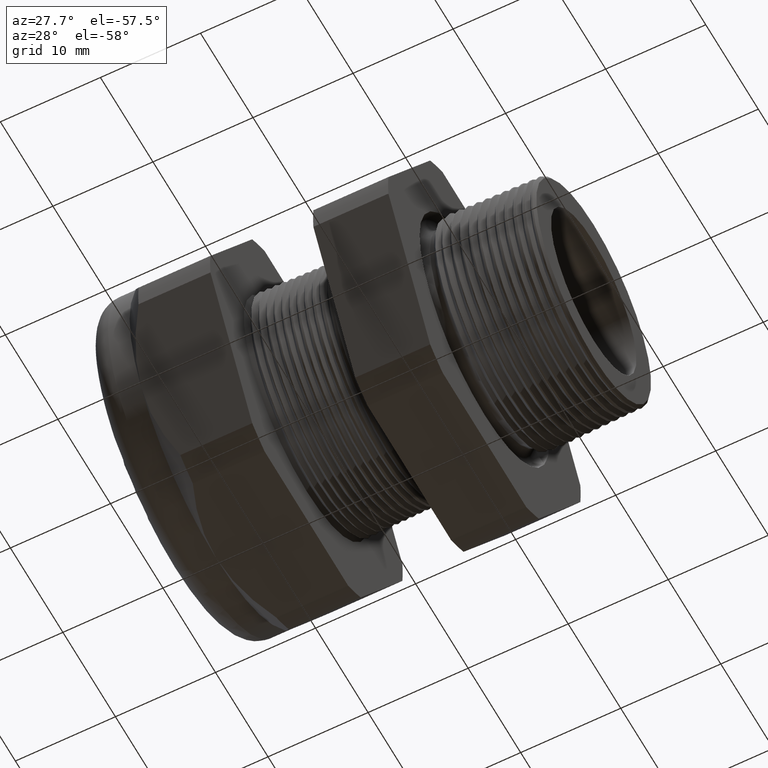
[diagram: clean part render]
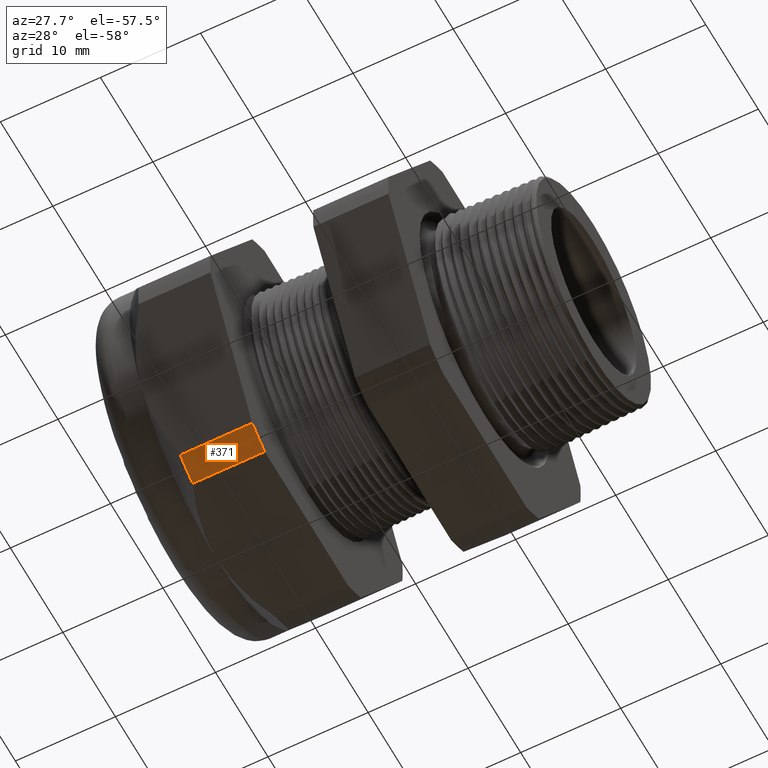
[diagram: same view with one face highlighted and labeled with its STEP entity id]
A machine part, auxiliary view. The second image highlights one B-rep face of the part: STEP entity #371.
In plain terms, the highlighted cylindrical surface (partial cylindrical patch) has radius 18.3261 mm, axis along (-1, 0, 0).
Its self-contained STEP definition (entity closure, byte-faithful):
#345 = EDGE_CURVE ( 'NONE', #374, #346, #1514, .T. ) ;
#346 = VERTEX_POINT ( 'NONE', #1510 ) ;
#347 = ORIENTED_EDGE ( 'NONE', *, *, #348, .T. ) ;
#348 = EDGE_CURVE ( 'NONE', #346, #363, #1508, .T. ) ;
#349 = ORIENTED_EDGE ( 'NONE', *, *, #361, .F. ) ;
#350 = ORIENTED_EDGE ( 'NONE', *, *, #351, .F. ) ;
#351 = EDGE_CURVE ( 'NONE', #374, #362, #1503, .T. ) ;
#361 = EDGE_CURVE ( 'NONE', #362, #363, #1550, .T. ) ;
#362 = VERTEX_POINT ( 'NONE', #1546 ) ;
#363 = VERTEX_POINT ( 'NONE', #1545 ) ;
#371 = ADVANCED_FACE ( 'NONE', ( #1529 ), #1580, .T. ) ;
#372 = EDGE_LOOP ( 'NONE', ( #373, #347, #349, #350 ) ) ;
#373 = ORIENTED_EDGE ( 'NONE', *, *, #345, .T. ) ;
#374 = VERTEX_POINT ( 'NONE', #1574 ) ;
#1499 = DIRECTION ( 'NONE',  ( 0.0000000000000000000, 0.0000000000000000000, -1.000000000000000000 ) ) ;
#1500 = DIRECTION ( 'NONE',  ( 1.000000000000000000, 0.0000000000000000000, 0.0000000000000000000 ) ) ;
#1501 = CARTESIAN_POINT ( 'NONE',  ( -1.010314960629921100, 0.0000000000000000000, 0.0000000000000000000 ) ) ;
#1502 = AXIS2_PLACEMENT_3D ( 'NONE', #1501, #1500, #1499 ) ;
#1503 = CIRCLE ( 'NONE', #1502, 0.7215000000000000300 ) ;
#1504 = DIRECTION ( 'NONE',  ( 0.0000000000000000000, 0.0000000000000000000, -1.000000000000000000 ) ) ;
#1505 = DIRECTION ( 'NONE',  ( 1.000000000000000000, 0.0000000000000000000, 0.0000000000000000000 ) ) ;
#1506 = CARTESIAN_POINT ( 'NONE',  ( -1.293145669291338600, 0.0000000000000000000, 0.0000000000000000000 ) ) ;
#1507 = AXIS2_PLACEMENT_3D ( 'NONE', #1506, #1505, #1504 ) ;
#1508 = CIRCLE ( 'NONE', #1507, 0.7215000000000000300 ) ;
#1510 = CARTESIAN_POINT ( 'NONE',  ( -1.293145669291338600, -0.4063420493440881300, -0.5961949252843793400 ) ) ;
#1511 = DIRECTION ( 'NONE',  ( -1.000000000000000000, 0.0000000000000000000, 0.0000000000000000000 ) ) ;
#1512 = VECTOR ( 'NONE', #1511, 39.37007874015748100 ) ;
#1513 = CARTESIAN_POINT ( 'NONE',  ( 0.1200000000000000900, -0.4063420493440881300, -0.5961949252843793400 ) ) ;
#1514 = LINE ( 'NONE', #1513, #1512 ) ;
#1529 = FACE_OUTER_BOUND ( 'NONE', #372, .T. ) ;
#1545 = CARTESIAN_POINT ( 'NONE',  ( -1.293145669291338800, -0.3131489262315934600, -0.6500000000000001300 ) ) ;
#1546 = CARTESIAN_POINT ( 'NONE',  ( -1.010314960629921100, -0.3131489262315934100, -0.6500000000000001300 ) ) ;
#1547 = DIRECTION ( 'NONE',  ( -1.000000000000000000, 0.0000000000000000000, 0.0000000000000000000 ) ) ;
#1548 = VECTOR ( 'NONE', #1547, 39.37007874015748100 ) ;
#1549 = CARTESIAN_POINT ( 'NONE',  ( 0.1200000000000000900, -0.3131489262315934100, -0.6500000000000001300 ) ) ;
#1550 = LINE ( 'NONE', #1549, #1548 ) ;
#1574 = CARTESIAN_POINT ( 'NONE',  ( -1.010314960629921100, -0.4063420493440881300, -0.5961949252843793400 ) ) ;
#1575 = DIRECTION ( 'NONE',  ( 0.0000000000000000000, 0.0000000000000000000, 1.000000000000000000 ) ) ;
#1576 = DIRECTION ( 'NONE',  ( -1.000000000000000000, 0.0000000000000000000, 0.0000000000000000000 ) ) ;
#1577 = CARTESIAN_POINT ( 'NONE',  ( 0.1200000000000000900, 0.0000000000000000000, 0.0000000000000000000 ) ) ;
#1578 = AXIS2_PLACEMENT_3D ( 'NONE', #1577, #1576, #1575 ) ;
#1580 = CYLINDRICAL_SURFACE ( 'NONE', #1578, 0.7215000000000000300 ) ;